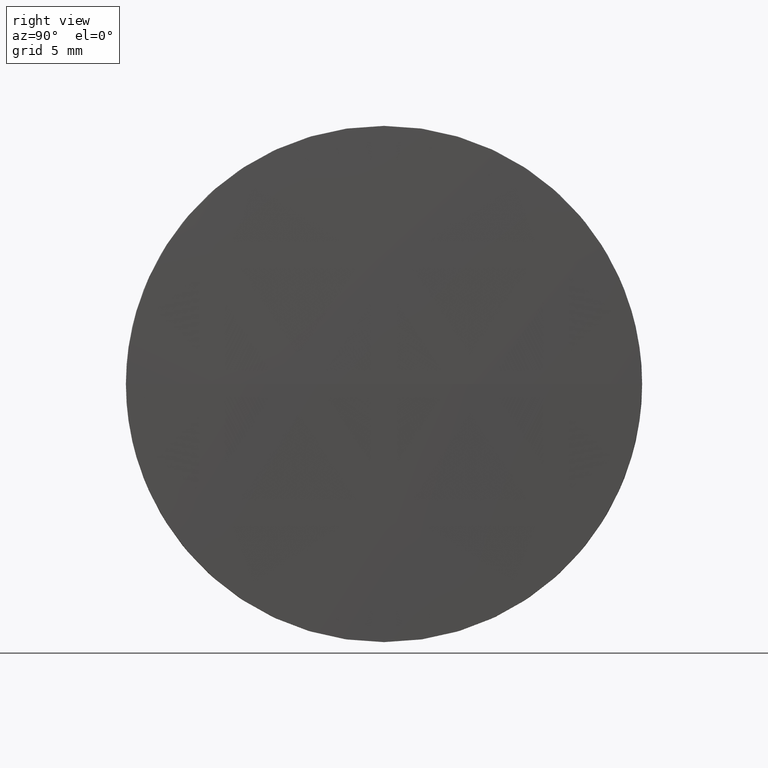
[diagram: clean part render]
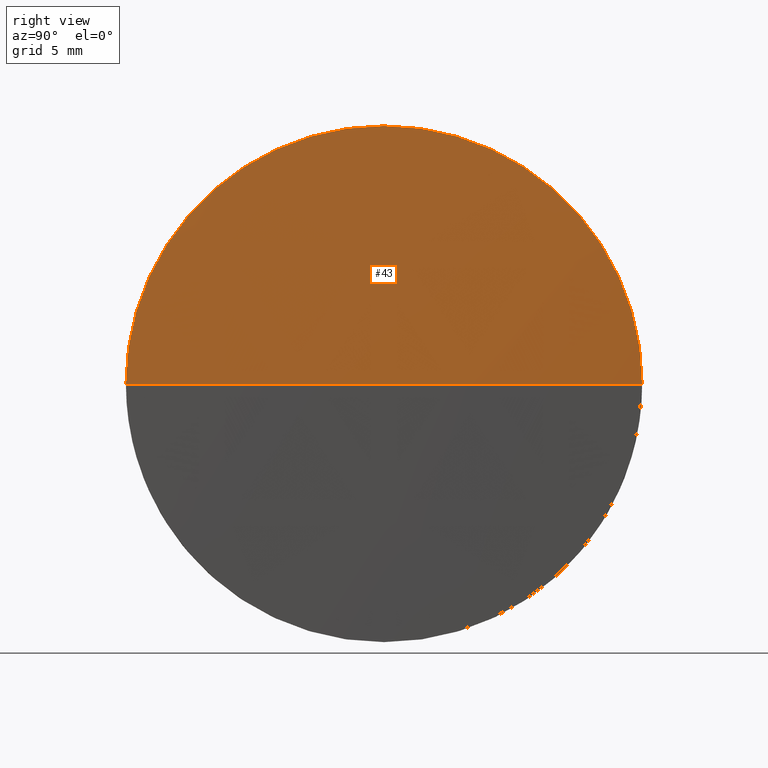
[diagram: same view with one face highlighted and labeled with its STEP entity id]
A machine part, right view. The second image highlights one B-rep face of the part: STEP entity #43.
In plain terms, the highlighted spherical surface has radius 520.908 mm.
Its self-contained STEP definition (entity closure, byte-faithful):
#4 = DIRECTION ( 'NONE',  ( 0.0000000000000000000, 0.0000000000000000000, 1.000000000000000000 ) ) ;
#6 = CARTESIAN_POINT ( 'NONE',  ( 342.9391285963631600, -50.57751368964579800, 0.0000000000000000000 ) ) ;
#12 = EDGE_CURVE ( 'NONE', #13, #80, #130, .T. ) ;
#13 = VERTEX_POINT ( 'NONE', #74 ) ;
#16 = AXIS2_PLACEMENT_3D ( 'NONE', #90, #4, #93 ) ;
#17 = CARTESIAN_POINT ( 'NONE',  ( -177.8192047369750000, -50.57751368964469000, 0.0000000000000000000 ) ) ;
#23 = DIRECTION ( 'NONE',  ( 0.0000000000000000000, -1.000000000000000000, -1.224646799147353200E-016 ) ) ;
#31 = AXIS2_PLACEMENT_3D ( 'NONE', #6, #91, #133 ) ;
#33 = ORIENTED_EDGE ( 'NONE', *, *, #162, .F. ) ;
#34 = CIRCLE ( 'NONE', #31, 12.49999999999999600 ) ;
#42 = ORIENTED_EDGE ( 'NONE', *, *, #12, .F. ) ;
#43 = ADVANCED_FACE ( 'NONE', ( #100 ), #118, .T. ) ;
#55 = CARTESIAN_POINT ( 'NONE',  ( 342.9391285963631000, -63.07751368964461800, 0.0000000000000000000 ) ) ;
#68 = ORIENTED_EDGE ( 'NONE', *, *, #73, .F. ) ;
#73 = EDGE_CURVE ( 'NONE', #138, #127, #34, .T. ) ;
#74 = CARTESIAN_POINT ( 'NONE',  ( 343.0891285963630800, -50.57751368964471800, 0.0000000000000000000 ) ) ;
#80 = VERTEX_POINT ( 'NONE', #55 ) ;
#87 = AXIS2_PLACEMENT_3D ( 'NONE', #143, #111, #98 ) ;
#90 = CARTESIAN_POINT ( 'NONE',  ( -177.8192047369750000, -50.57751368964469000, 0.0000000000000000000 ) ) ;
#91 = DIRECTION ( 'NONE',  ( -1.000000000000000000, -0.0000000000000000000, -0.0000000000000000000 ) ) ;
#93 = DIRECTION ( 'NONE',  ( 0.0000000000000000000, -1.000000000000000000, 0.0000000000000000000 ) ) ;
#94 = DIRECTION ( 'NONE',  ( 0.0000000000000000000, -1.224646799147353200E-016, 1.000000000000000000 ) ) ;
#96 = AXIS2_PLACEMENT_3D ( 'NONE', #159, #94, #23 ) ;
#98 = DIRECTION ( 'NONE',  ( 0.0000000000000000000, 0.0000000000000000000, 1.000000000000000000 ) ) ;
#100 = FACE_OUTER_BOUND ( 'NONE', #157, .T. ) ;
#111 = DIRECTION ( 'NONE',  ( -1.000000000000000000, -0.0000000000000000000, -0.0000000000000000000 ) ) ;
#112 = CIRCLE ( 'NONE', #96, 520.9083333333380800 ) ;
#114 = CARTESIAN_POINT ( 'NONE',  ( 342.9391285963631000, -38.07751368964586200, 1.530808498934047600E-015 ) ) ;
#118 = SPHERICAL_SURFACE ( 'NONE', #16, 520.9083333333380800 ) ;
#121 = EDGE_CURVE ( 'NONE', #13, #127, #112, .T. ) ;
#122 = DIRECTION ( 'NONE',  ( 0.0000000000000000000, 0.0000000000000000000, -1.000000000000000000 ) ) ;
#127 = VERTEX_POINT ( 'NONE', #114 ) ;
#130 = CIRCLE ( 'NONE', #169, 520.9083333333380800 ) ;
#132 = CIRCLE ( 'NONE', #87, 12.49999999999999600 ) ;
#133 = DIRECTION ( 'NONE',  ( 0.0000000000000000000, 0.0000000000000000000, 1.000000000000000000 ) ) ;
#137 = DIRECTION ( 'NONE',  ( -1.000000000000000000, 0.0000000000000000000, 0.0000000000000000000 ) ) ;
#138 = VERTEX_POINT ( 'NONE', #185 ) ;
#143 = CARTESIAN_POINT ( 'NONE',  ( 342.9391285963631600, -50.57751368964579800, 0.0000000000000000000 ) ) ;
#157 = EDGE_LOOP ( 'NONE', ( #42, #161, #68, #33 ) ) ;
#159 = CARTESIAN_POINT ( 'NONE',  ( -177.8192047369750000, -50.57751368964469000, 0.0000000000000000000 ) ) ;
#161 = ORIENTED_EDGE ( 'NONE', *, *, #121, .T. ) ;
#162 = EDGE_CURVE ( 'NONE', #80, #138, #132, .T. ) ;
#169 = AXIS2_PLACEMENT_3D ( 'NONE', #17, #122, #137 ) ;
#185 = CARTESIAN_POINT ( 'NONE',  ( 342.9391285963631600, -50.57751368964579800, 12.49999999999999600 ) ) ;